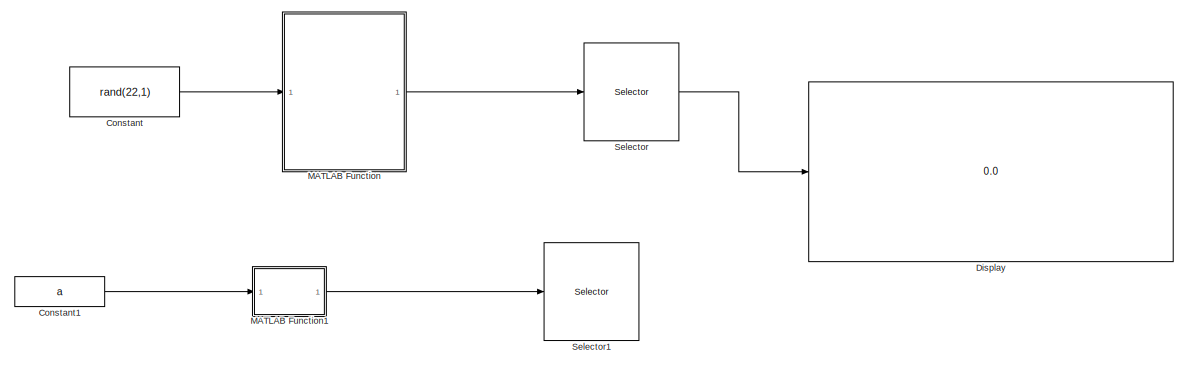
[diagram: root canvas - part 1/2, full width, top band]
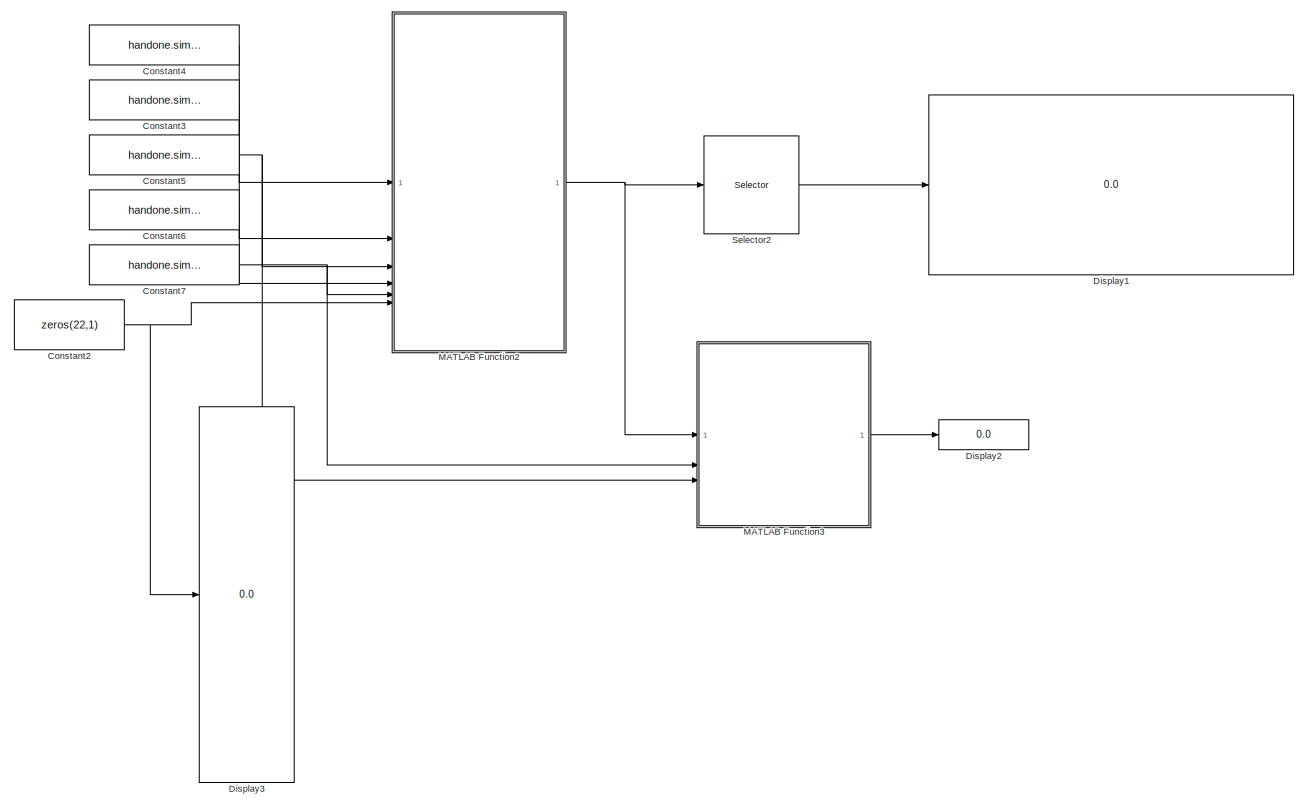
[diagram: root canvas - part 2/2, full width, bottom band]
MODEL slx_10fa33e6d89e
KIND model
CONFIG AbsTol = auto
CONFIG EnableMultiTasking = off
CONFIG FixedStep = auto
CONFIG InitFcn = a = struct();\na.l1 = ones(4,4);\na.l2 = 2*ones(5,4);\n
CONFIG MaxStep = auto
CONFIG MinStep = auto
CONFIG RelTol = 1e-3
CONFIG SampleTimeConstraint = Unconstrained
CONFIG SolverName = VariableStepAuto
CONFIG StartTime = 0.0
CONFIG StopTime = 10.0
BLOCK [Constant] Constant
  Value = rand(22,1)
BLOCK [Constant] Constant1
  Commented = on
  Value = a
BLOCK [Constant] Constant2
  Value = zeros(22,1)
BLOCK [Constant] Constant3
  Value = handone.sim_mdh_index
BLOCK [Constant] Constant4
  Value = handone.sim_mdh
BLOCK [Constant] Constant5
  Value = handone.sim_q_index
BLOCK [Constant] Constant6
  Value = handone.sim_w_T_b
BLOCK [Constant] Constant7
  Value = handone.sim_n_links
BLOCK [Display] Display
  Decimation = 1
BLOCK [Display] Display1
  Decimation = 1
BLOCK [Display] Display2
  Decimation = 1
BLOCK [Display] Display3
  Decimation = 1
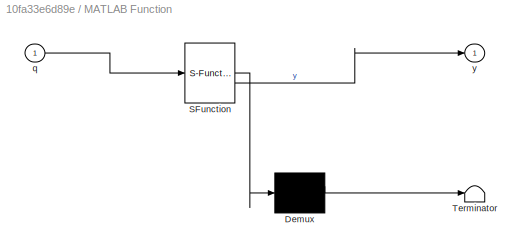
BLOCK [SubSystem] MATLAB Function
  ErrorFcn = Stateflow.Translate.translate
  LibrarySourceBlock = simulink/User-Defined\nFunctions/MATLAB Function
  PermitHierarchicalResolution = ExplicitOnly
  SFBlockType = MATLAB Function
  TreatAsAtomicUnit = on
BLOCK [Demux] MATLAB Function/ Demux 
  Outputs = 1
BLOCK [S-Function] MATLAB Function/ SFunction 
  EnableBusSupport = on
  FunctionName = sf_sfun
  PortCounts = [1 2]
  SFcnIsStateOwnerBlock = off
  SFunctionDeploymentMode = off
  Tag = Stateflow S-Function 2
BLOCK [Terminator] MATLAB Function/ Terminator 
BLOCK [Inport] MATLAB Function/q
BLOCK [Outport] MATLAB Function/y
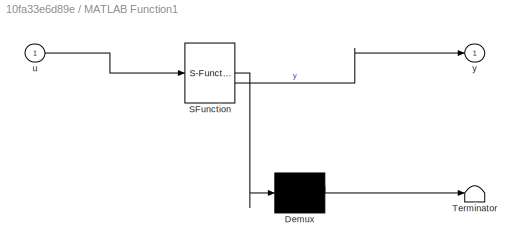
BLOCK [SubSystem] MATLAB Function1
  Commented = on
  ErrorFcn = Stateflow.Translate.translate
  LibrarySourceBlock = simulink/User-Defined\nFunctions/MATLAB Function
  PermitHierarchicalResolution = ExplicitOnly
  SFBlockType = MATLAB Function
  TreatAsAtomicUnit = on
BLOCK [Demux] MATLAB Function1/ Demux 
  Outputs = 1
BLOCK [S-Function] MATLAB Function1/ SFunction 
  EnableBusSupport = on
  FunctionName = sf_sfun
  PortCounts = [1 2]
  SFcnIsStateOwnerBlock = off
  SFunctionDeploymentMode = off
  Tag = Stateflow S-Function 1
BLOCK [Terminator] MATLAB Function1/ Terminator 
BLOCK [Inport] MATLAB Function1/u
BLOCK [Outport] MATLAB Function1/y
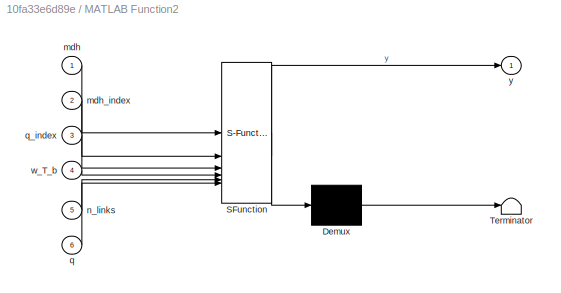
BLOCK [SubSystem] MATLAB Function2
  ErrorFcn = Stateflow.Translate.translate
  LibrarySourceBlock = simulink/User-Defined\nFunctions/MATLAB Function
  PermitHierarchicalResolution = ExplicitOnly
  SFBlockType = MATLAB Function
  TreatAsAtomicUnit = on
BLOCK [Demux] MATLAB Function2/ Demux 
  Outputs = 1
BLOCK [S-Function] MATLAB Function2/ SFunction 
  EnableBusSupport = on
  FunctionName = sf_sfun
  PortCounts = [6 2]
  SFcnIsStateOwnerBlock = off
  SFunctionDeploymentMode = off
  Tag = Stateflow S-Function 3
BLOCK [Terminator] MATLAB Function2/ Terminator 
BLOCK [Inport] MATLAB Function2/mdh
BLOCK [Inport] MATLAB Function2/mdh_index
  Port = 2
BLOCK [Inport] MATLAB Function2/n_links
  Port = 5
BLOCK [Inport] MATLAB Function2/q
  Port = 6
BLOCK [Inport] MATLAB Function2/q_index
  Port = 3
BLOCK [Inport] MATLAB Function2/w_T_b
  Port = 4
BLOCK [Outport] MATLAB Function2/y
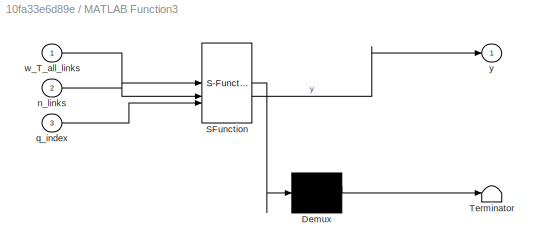
BLOCK [SubSystem] MATLAB Function3
  ErrorFcn = Stateflow.Translate.translate
  LibrarySourceBlock = simulink/User-Defined\nFunctions/MATLAB Function
  PermitHierarchicalResolution = ExplicitOnly
  SFBlockType = MATLAB Function
  TreatAsAtomicUnit = on
BLOCK [Demux] MATLAB Function3/ Demux 
  Outputs = 1
BLOCK [S-Function] MATLAB Function3/ SFunction 
  EnableBusSupport = on
  FunctionName = sf_sfun
  PortCounts = [3 2]
  SFcnIsStateOwnerBlock = off
  SFunctionDeploymentMode = off
  Tag = Stateflow S-Function 4
BLOCK [Terminator] MATLAB Function3/ Terminator 
BLOCK [Inport] MATLAB Function3/n_links
  Port = 2
BLOCK [Inport] MATLAB Function3/q_index
  Port = 3
BLOCK [Inport] MATLAB Function3/w_T_all_links
BLOCK [Outport] MATLAB Function3/y
BLOCK [Selector] Selector
  IndexOptions = Index vector (dialog),Index vector (dialog),Index vector (dialog)
  Indices = [1:4],[1:4],[4]
  InputPortWidth = 3
  NumberOfDimensions = 3
  OutputSizes = 1,1,1
BLOCK [Selector] Selector1
  Commented = on
  IndexOptions = Index vector (dialog),Index vector (dialog)
  Indices = [1:4],[1:4]
  InputPortWidth = 1
  NumberOfDimensions = 2
  OutputSizes = 1,1
BLOCK [Selector] Selector2
  IndexOptions = Index vector (dialog),Index vector (dialog),Index vector (dialog)
  Indices = [1:4],[1:4],[4]
  InputPortWidth = 3
  NumberOfDimensions = 3
  OutputSizes = 1,1,1
LINE Constant1:1 -> MATLAB Function1:1
NET Constant2:1 -> Display3:1, MATLAB Function2:6
LINE Constant3:1 -> MATLAB Function2:2
LINE Constant4:1 -> MATLAB Function2:1
NET Constant5:1 -> MATLAB Function2:3, MATLAB Function3:3
LINE Constant6:1 -> MATLAB Function2:4
NET Constant7:1 -> MATLAB Function2:5, MATLAB Function3:2
LINE Constant:1 -> MATLAB Function:1
LINE MATLAB Function1:1 -> Selector1:1
NET MATLAB Function2:1 -> MATLAB Function3:1, Selector2:1
LINE MATLAB Function3:1 -> Display2:1
LINE MATLAB Function:1 -> Selector:1
LINE Selector2:1 -> Display1:1
LINE Selector:1 -> Display:1
note: NET lines group one-source signal fan-out (src -> all destinations, sorted); 1:1 wires keep LINE
CHART MATLAB Function1 states=1 transitions=1
  STATE_LABEL 'eML_blk_kernel()'
  STATE_LABEL 'SCRIPT:\nfunction y = fcn(u)\n\ny = u.l1;\n'
CHART MATLAB Function states=1 transitions=1
  STATE_LABEL 'eML_blk_kernel()'
  STATE_LABEL 'SCRIPT:\nfunction y = fcn(q)\nw_T_all_sym = T_all_links_from_q_finger_example(q(:));\ny = w_T_all_sym;\n'
CHART MATLAB Function2 states=1 transitions=1
  STATE_LABEL 'eML_blk_kernel()'
  STATE_LABEL 'SCRIPT:\nfunction y = fcn(mdh,mdh_index,q_index,w_T_b,n_links,q)\nw_T_all_links = sim_w_T_all_links_from_q(mdh,mdh_index,q_index,w_T_b,n_links,q);\ny = w_T_all_links;\n'
CHART MATLAB Function3 states=1 transitions=1
  STATE_LABEL 'eML_blk_kernel()'
  STATE_LABEL 'SCRIPT:\nfunction y = fcn(w_T_all_links,n_links,q_index)\nstatus = sim_plot_hand(w_T_all_links,n_links,q_index);\ny = status;\n'
CHART  states=0 transitions=0
CHART  states=0 transitions=0
CHART  states=0 transitions=0
CHART  states=0 transitions=0
